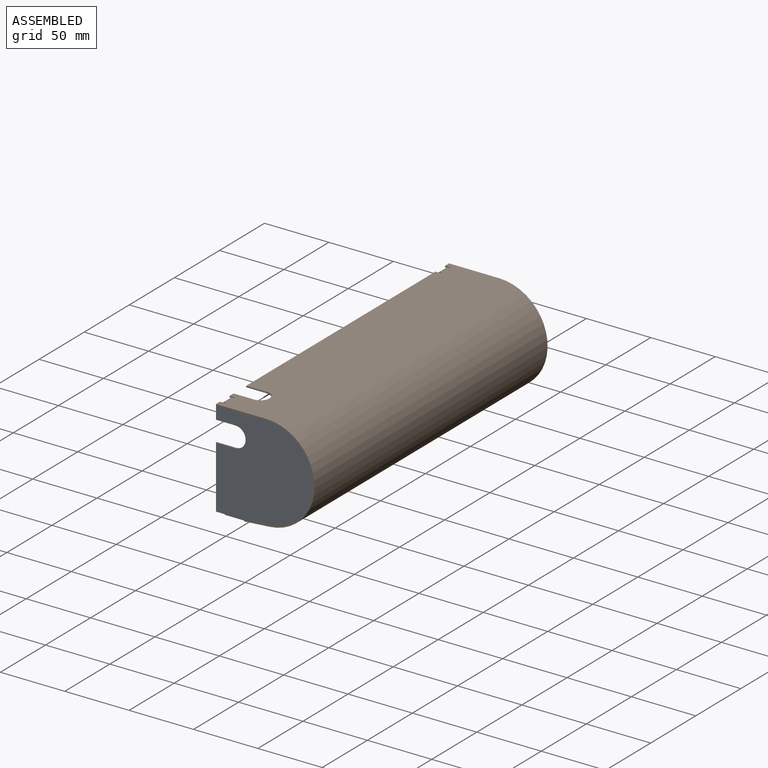
[diagram: assembled view]
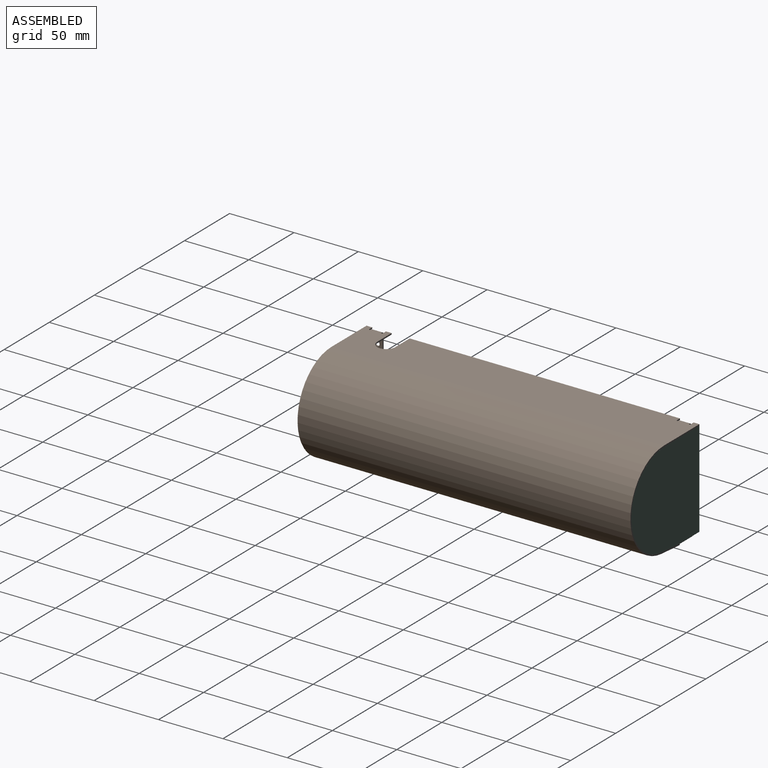
[diagram: assembled view, second angle]
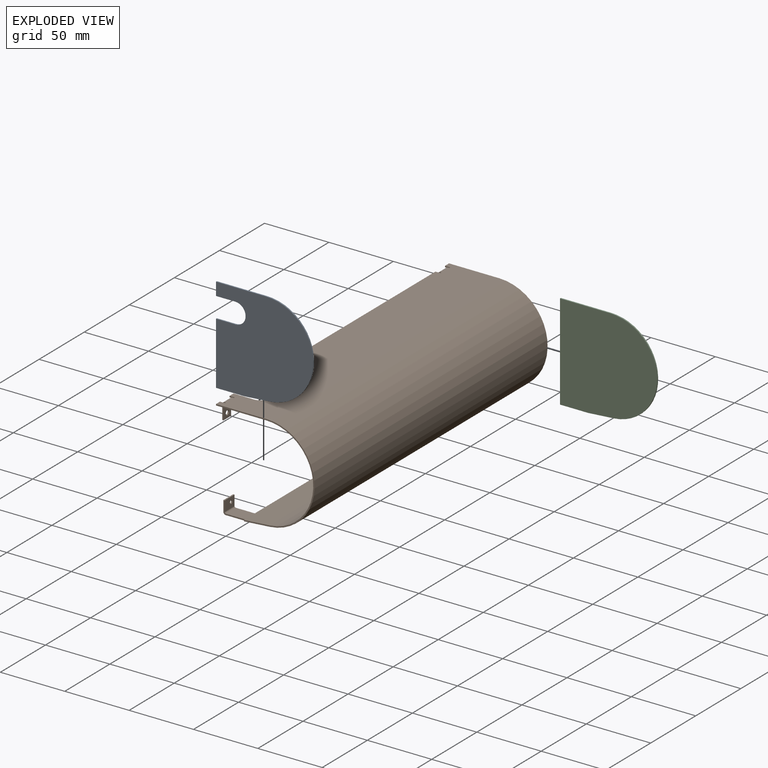
[diagram: exploded view]
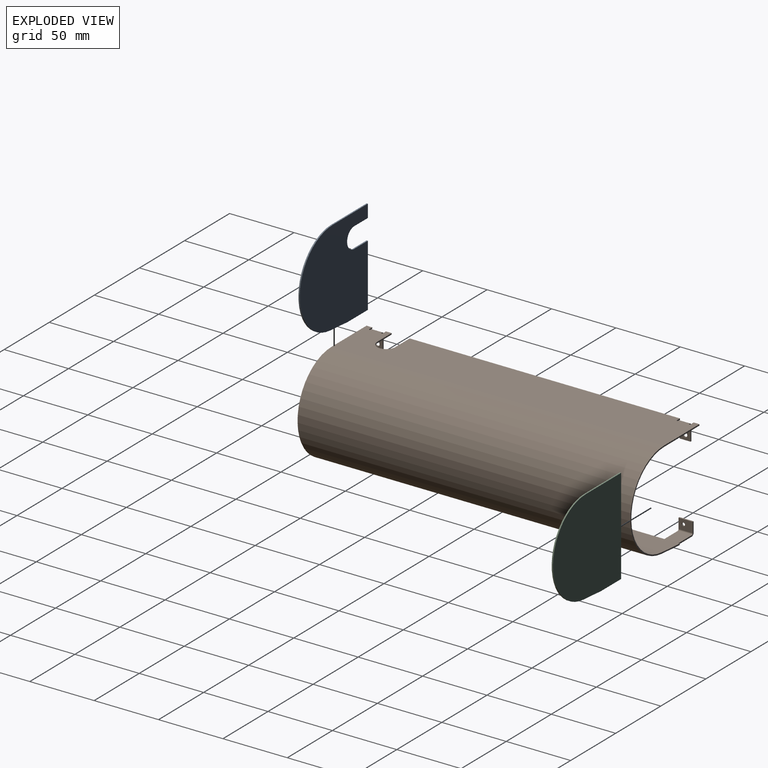
[diagram: exploded view, second angle]
ASSEMBLY  parts=3 mates=6
PART A: 11 faces, bbox 75.6x1x74.5 mm
  f0: plane 48.5x1mm, normal (-1,0,0), area 48.5mm2, adj f3,f6,f7,f10
  f1: plane 39x1mm, normal (0,0,1), area 39mm2, adj f2,f5,f6,f7
  f2: plane 10x1mm, normal (-1,0,0), area 10mm2, adj f1,f6,f7,f9
  f3: plane 22x1mm, normal (0,0,-1), area 22mm2, adj f0,f4,f6,f7
  f4: plane 19.77x1.5mm, normal (0.08,0,-1), area 19.8mm2, adj f3,f5,f6,f7
  f5: cylinder r=36.55mm len=73mm, axis (0,1,0), area 112.1mm2, adj f1,f4,f6,f7
  f6: plane 75.55x74.5mm, normal (0,-1,0), area 4652.8mm2, adj f0,f1,f2,f3,f4,f5,f8,f9
  f7: plane 75.55x74.5mm, normal (0,1,0), area 4652.8mm2, adj f0,f1,f2,f3,f4,f5,f8,f9
  f8: cylinder r=8mm len=16mm, axis (0,-1,0), area 25.1mm2, adj f6,f7,f9,f10
  f9: plane 15x1mm, normal (0,0,-1), area 15mm2, adj f2,f6,f7,f8
  f10: plane 15x1mm, normal (0,0,1), area 15mm2, adj f0,f6,f7,f8
PART B: 86 faces, bbox 76.6x258.5x76.5 mm
  f0: plane 4.44x1mm, normal (-1,0,0), area 4.4mm2, adj f2,f3,f10,f13
  f1: plane 4.44x1mm, normal (-1,0,0), area 4.4mm2, adj f2,f3,f6,f19
  f2: plane 258.5x39mm, normal (0,0,1), area 9712.9mm2, adj f0,f1,f4,f5,f6,f7,f8,f9
  f3: plane 258.5x39mm, normal (0,0,-1), area 9712.9mm2, adj f0,f1,f4,f5,f6,f7,f8,f9
  f4: plane 4.44x1mm, normal (-1,0,0), area 4.4mm2, adj f2,f3,f5,f22
  f5: plane 39x1mm, normal (0,-1,0), area 39mm2, adj f2,f3,f4,f23
  f6: plane 39x1mm, normal (0,1,0), area 39mm2, adj f1,f2,f3,f24
  f7: plane 209.94x1mm, normal (-1,0,0), area 209.9mm2, adj f2,f3,f8,f16
  f8: plane 16x1mm, normal (0,-1,0), area 16mm2, adj f2,f3,f7,f9
  f9: cylinder r=7mm len=14mm, axis (0,0,1), area 22mm2, adj f2,f3,f8,f10
  f10: plane 16x1mm, normal (0,1,0), area 16mm2, adj f0,f2,f3,f9
  f11: plane 1x0.5mm, normal (0,1,0), area 0.5mm2, adj f2,f3,f12,f82
  f12: cylinder r=0.53mm len=1.06mm, axis (0,0,-1), area 1.7mm2, adj f2,f3,f11,f13
  f13: plane 3.5x1mm, normal (0,-1,0), area 3.5mm2, adj f0,f2,f3,f12
  f14: cylinder r=0.53mm len=1.06mm, axis (0,0,-1), area 1.7mm2, adj f2,f3,f15,f16
  f15: plane 1x0.5mm, normal (0,-1,0), area 0.5mm2, adj f2,f3,f14,f73
  f16: plane 3.5x1mm, normal (0,1,0), area 3.5mm2, adj f2,f3,f7,f14
  f17: plane 1x0.5mm, normal (0,1,0), area 0.5mm2, adj f2,f3,f18,f72
  f18: cylinder r=0.53mm len=1.06mm, axis (0,0,-1), area 1.7mm2, adj f2,f3,f17,f19
  f19: plane 3.5x1mm, normal (0,-1,0), area 3.5mm2, adj f1,f2,f3,f18
  f20: cylinder r=0.53mm len=1.06mm, axis (0,0,-1), area 1.7mm2, adj f2,f3,f21,f22
  f21: plane 1x0.5mm, normal (0,-1,0), area 0.5mm2, adj f2,f3,f20,f83
  f22: plane 3.5x1mm, normal (0,1,0), area 3.5mm2, adj f2,f3,f4,f20
  f23: plane 75x37.55mm, normal (0,-1,0), area 113.6mm2, adj f5,f25,f26,f38
  f24: plane 75x37.55mm, normal (0,1,0), area 113.6mm2, adj f6,f25,f26,f39
  f25: cylinder r=37.55mm len=258.5mm, axis (0,1,0), area 29761.1mm2, adj f2,f23,f24,f40
  f26: cylinder r=36.55mm len=258.5mm, axis (0,1,0), area 28968.6mm2, adj f3,f23,f24,f41
  f27: plane 1x0.2mm, normal (0,1,0), area 0.2mm2, adj f35,f36,f37,f42
  f28: plane 1x0.2mm, normal (0,-1,0), area 0.2mm2, adj f29,f36,f37,f43
  f29: plane 1x1mm, normal (-1,0,0), area 1mm2, adj f28,f30,f36,f37
  f30: plane 14.76x1mm, normal (0,-1,0), area 14.8mm2, adj f29,f36,f37,f62
  f31: plane 14.76x1mm, normal (0,1,0), area 14.8mm2, adj f32,f36,f37,f63
  f32: plane 234.5x1mm, normal (-1,0,0), area 234.5mm2, adj f31,f33,f36,f37
  f33: plane 14.76x1mm, normal (0,-1,0), area 14.8mm2, adj f32,f36,f37,f52
  f34: plane 14.76x1mm, normal (0,1,0), area 14.8mm2, adj f35,f36,f37,f53
  f35: plane 1x1mm, normal (-1,0,0), area 1mm2, adj f27,f34,f36,f37
  f36: plane 258.5x14.96mm, normal (0,0,-1), area 376.5mm2, adj f27,f28,f29,f30,f31,f32,f33,f34
  f37: plane 258.5x14.96mm, normal (0,0,1), area 376.5mm2, adj f27,f28,f29,f30,f31,f32,f33,f34
  f38: plane 19.8x2.49mm, normal (0,-1,0), area 19.8mm2, adj f23,f40,f41,f43
  f39: plane 19.8x2.49mm, normal (0,1,0), area 19.8mm2, adj f24,f40,f41,f42
  f40: plane 258.5x19.73mm, normal (0.08,0,-1), area 5114.4mm2, adj f25,f38,f39,f44
  f41: plane 258.5x19.73mm, normal (-0.08,0,1), area 5114.4mm2, adj f26,f38,f39,f45
  f42: plane 1x0.15mm, normal (0,1,0), area 0.1mm2, adj f27,f39,f44,f45
  f43: plane 1x0.15mm, normal (0,-1,0), area 0.1mm2, adj f28,f38,f44,f45
  f44: cylinder r=2mm len=258.5mm, axis (0,1,0), area 39.2mm2, adj f36,f40,f42,f43
  f45: cylinder r=1mm len=258.5mm, axis (0,1,0), area 19.6mm2, adj f37,f41,f42,f43
  f46: plane 11x1mm, normal (0,0,1), area 11mm2, adj f47,f49,f50,f51
  f47: plane 8x1mm, normal (0,1,0), area 8mm2, adj f46,f50,f51,f53
  f48: cylinder r=1.25mm len=2.5mm, axis (-1,0,0), area 7.9mm2, adj f50,f51
  f49: plane 8x1mm, normal (0,-1,0), area 8mm2, adj f46,f50,f51,f52
  f50: plane 11x8mm, normal (-1,0,0), area 83.1mm2, adj f46,f47,f48,f49,f54
  f51: plane 11x8mm, normal (1,0,0), area 83.1mm2, adj f46,f47,f48,f49,f55
  f52: plane 2x2mm, normal (0,-1,0), area 2.4mm2, adj f33,f49,f54,f55
  f53: plane 2x2mm, normal (0,1,0), area 2.4mm2, adj f34,f47,f54,f55
  f54: cylinder r=2mm len=11mm, axis (0,-1,0), area 34.6mm2, adj f36,f50,f52,f53
  f55: cylinder r=1mm len=11mm, axis (0,-1,0), area 17.3mm2, adj f37,f51,f52,f53
  f56: plane 11x1mm, normal (0,0,1), area 11mm2, adj f57,f59,f60,f61
  f57: plane 8x1mm, normal (0,1,0), area 8mm2, adj f56,f60,f61,f63
  f58: cylinder r=1.25mm len=2.5mm, axis (-1,0,0), area 7.9mm2, adj f60,f61
  f59: plane 8x1mm, normal (0,-1,0), area 8mm2, adj f56,f60,f61,f62
  f60: plane 11x8mm, normal (-1,0,0), area 83.1mm2, adj f56,f57,f58,f59,f64
  f61: plane 11x8mm, normal (1,0,0), area 83.1mm2, adj f56,f57,f58,f59,f65
  f62: plane 2x2mm, normal (0,-1,0), area 2.4mm2, adj f30,f59,f64,f65
  f63: plane 2x2mm, normal (0,1,0), area 2.4mm2, adj f31,f57,f64,f65
  f64: cylinder r=2mm len=11mm, axis (0,-1,0), area 34.6mm2, adj f36,f60,f62,f63
  f65: cylinder r=1mm len=11mm, axis (0,-1,0), area 17.3mm2, adj f37,f61,f62,f63
  f66: plane 8.5x1mm, normal (0,0,-1), area 8.5mm2, adj f67,f69,f70,f71
  f67: plane 11x1mm, normal (0,-1,0), area 11mm2, adj f66,f70,f71,f73
  f68: cylinder r=1.75mm len=3.5mm, axis (-1,0,0), area 11mm2, adj f70,f71
  f69: plane 11x1mm, normal (0,1,0), area 11mm2, adj f66,f70,f71,f72
  f70: plane 11x8.5mm, normal (-1,0,0), area 83.9mm2, adj f66,f67,f68,f69,f74
  f71: plane 11x8.5mm, normal (1,0,0), area 83.9mm2, adj f66,f67,f68,f69,f75
  f72: plane 2x2mm, normal (0,1,0), area 2.4mm2, adj f17,f69,f74,f75
  f73: plane 2x2mm, normal (0,-1,0), area 2.4mm2, adj f15,f67,f74,f75
  f74: cylinder r=2mm len=8.5mm, axis (0,1,0), area 26.7mm2, adj f2,f70,f72,f73
  f75: cylinder r=1mm len=8.5mm, axis (0,1,0), area 13.4mm2, adj f3,f71,f72,f73
  f76: plane 8.5x1mm, normal (0,0,-1), area 8.5mm2, adj f77,f79,f80,f81
  f77: plane 11x1mm, normal (0,-1,0), area 11mm2, adj f76,f80,f81,f83
  f78: cylinder r=1.75mm len=3.5mm, axis (-1,0,0), area 11mm2, adj f80,f81
  f79: plane 11x1mm, normal (0,1,0), area 11mm2, adj f76,f80,f81,f82
  f80: plane 11x8.5mm, normal (-1,0,0), area 83.9mm2, adj f76,f77,f78,f79,f84
  f81: plane 11x8.5mm, normal (1,0,0), area 83.9mm2, adj f76,f77,f78,f79,f85
  f82: plane 2x2mm, normal (0,1,0), area 2.4mm2, adj f11,f79,f84,f85
  f83: plane 2x2mm, normal (0,-1,0), area 2.4mm2, adj f21,f77,f84,f85
  f84: cylinder r=2mm len=8.5mm, axis (0,1,0), area 26.7mm2, adj f2,f80,f82,f83
  f85: cylinder r=1mm len=8.5mm, axis (0,1,0), area 13.4mm2, adj f3,f81,f82,f83
PART C: 7 faces, bbox 75.6x1x74.5 mm
  f0: plane 39x1mm, normal (0,0,1), area 39mm2, adj f1,f4,f5,f6
  f1: plane 74.5x1mm, normal (-1,0,0), area 74.5mm2, adj f0,f2,f5,f6
  f2: plane 22x1mm, normal (0,0,-1), area 22mm2, adj f1,f3,f5,f6
  f3: plane 19.77x1.5mm, normal (0.08,0,-1), area 19.8mm2, adj f2,f4,f5,f6
  f4: cylinder r=36.55mm len=73mm, axis (0,1,0), area 112.1mm2, adj f0,f3,f5,f6
  f5: plane 75.55x74.5mm, normal (0,-1,0), area 4993.3mm2, adj f0,f1,f2,f3,f4
  f6: plane 75.55x74.5mm, normal (0,1,0), area 4993.3mm2, adj f0,f1,f2,f3,f4
PLACE A t=(18.87,-131.43,-67.03)mm
PLACE B t=(-9.89,126.07,-74.5)mm
PLACE C t=(18.87,126.07,-67.03)mm
MATE planar C.f1 <-> B.f1  axis (-1,0,0) through (-19.89,125.57,-37.25)mm
MATE planar A.f1 <-> B.f3  axis (0,0,1) through (-0.39,-131.93,0)mm
MATE planar A.f2 <-> B.f4  axis (-1,0,0) through (-19.89,-131.93,-5)mm
MATE planar C.f6 <-> B.f6  axis (0,1,0) through (14.29,126.07,-36.88)mm
MATE planar C.f0 <-> B.f3  axis (0,0,1) through (-0.39,125.57,0)mm
MATE planar A.f6 <-> B.f5  axis (0,-1,0) through (16.01,-132.43,-38.26)mm
